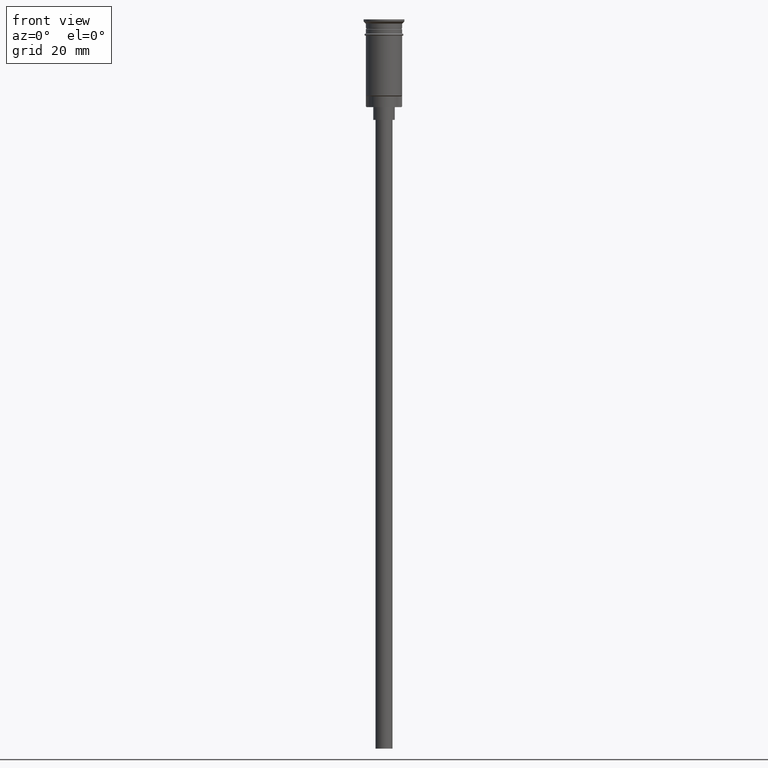
[diagram: clean part render]
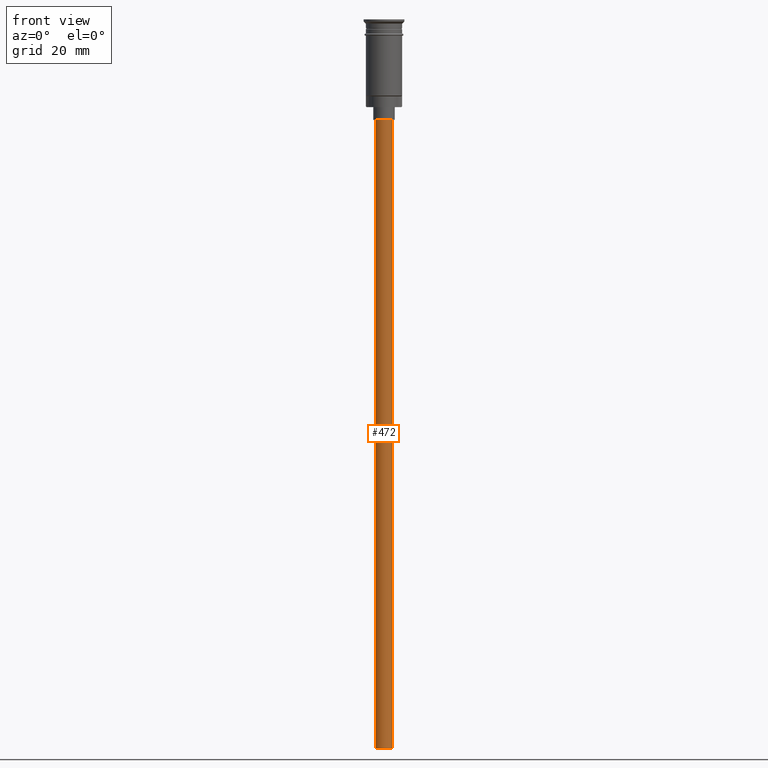
[diagram: same view with one face highlighted and labeled with its STEP entity id]
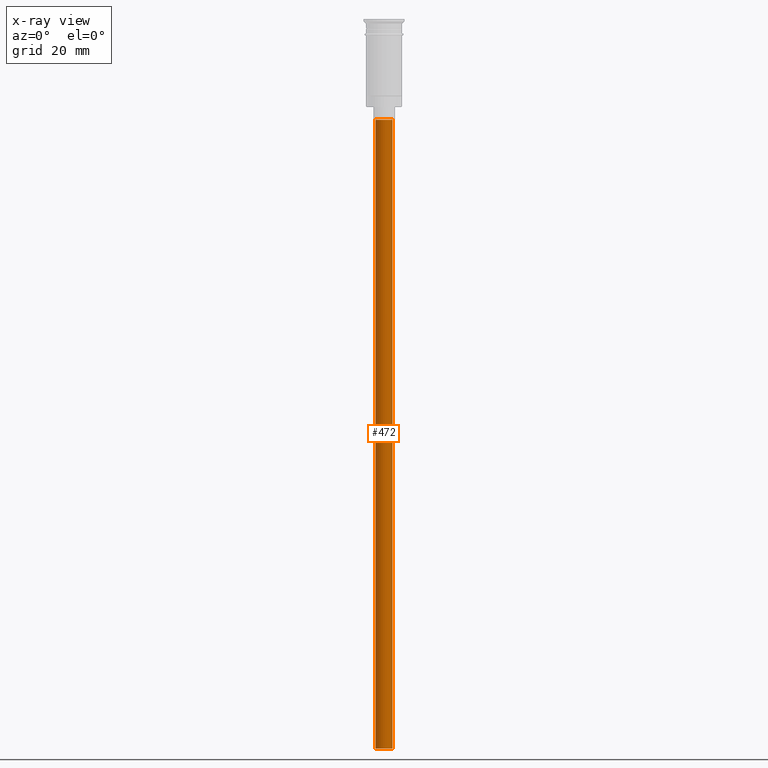
[diagram: x-ray of the same camera — body ghosted, the highlighted face saturated]
A machine part, front view. The second image highlights one B-rep face of the part: STEP entity #472.
The next image is the same camera in x-ray: the body ghosted, the highlighted face saturated — about 0% of this face is hidden behind the body in this view.
In plain terms, the highlighted cylindrical surface (edge-blend (fillet) strip) has radius 2 mm, axis along (-0, -0, 1).
Its self-contained STEP definition (entity closure, byte-faithful):
#59 = VERTEX_POINT ( 'NONE', #550 ) ;
#78 = DIRECTION ( 'NONE',  ( -0.000000000000000000, -0.000000000000000000, 1.000000000000000000 ) ) ;
#93 = ORIENTED_EDGE ( 'NONE', *, *, #1487, .T. ) ;
#177 = FACE_OUTER_BOUND ( 'NONE', #1475, .T. ) ;
#247 = VECTOR ( 'NONE', #1209, 1000.000000000000000 ) ;
#281 = DIRECTION ( 'NONE',  ( 0.000000000000000000, 0.000000000000000000, -1.000000000000000000 ) ) ;
#335 = LINE ( 'NONE', #1224, #247 ) ;
#365 = CARTESIAN_POINT ( 'NONE',  ( 0.000000000000000000, 0.000000000000000000, -23.49999999999999645 ) ) ;
#397 = CARTESIAN_POINT ( 'NONE',  ( 0.000000000000000000, 0.000000000000000000, -170.4999999999999716 ) ) ;
#430 = AXIS2_PLACEMENT_3D ( 'NONE', #365, #1365, #468 ) ;
#468 = DIRECTION ( 'NONE',  ( -1.000000000000000000, 0.000000000000000000, 0.000000000000000000 ) ) ;
#472 = ADVANCED_FACE ( 'NONE', ( #177 ), #806, .T. ) ;
#501 = CIRCLE ( 'NONE', #1226, 2.000000000000000000 ) ;
#550 = CARTESIAN_POINT ( 'NONE',  ( -2.000000000000000000, 2.449293598294706414E-16, -23.49999999999999645 ) ) ;
#687 = LINE ( 'NONE', #1560, #796 ) ;
#696 = ORIENTED_EDGE ( 'NONE', *, *, #891, .T. ) ;
#708 = CARTESIAN_POINT ( 'NONE',  ( 2.000000000000000000, 0.000000000000000000, -170.4999999999999716 ) ) ;
#778 = DIRECTION ( 'NONE',  ( -1.000000000000000000, 0.000000000000000000, 0.000000000000000000 ) ) ;
#786 = EDGE_CURVE ( 'NONE', #1277, #1184, #501, .T. ) ;
#796 = VECTOR ( 'NONE', #1046, 1000.000000000000000 ) ;
#806 = CYLINDRICAL_SURFACE ( 'NONE', #1059, 2.000000000000000000 ) ;
#847 = CIRCLE ( 'NONE', #430, 2.000000000000000000 ) ;
#891 = EDGE_CURVE ( 'NONE', #1277, #1499, #687, .T. ) ;
#940 = DIRECTION ( 'NONE',  ( 1.000000000000000000, 0.000000000000000000, 0.000000000000000000 ) ) ;
#1016 = ORIENTED_EDGE ( 'NONE', *, *, #786, .F. ) ;
#1046 = DIRECTION ( 'NONE',  ( -0.000000000000000000, -0.000000000000000000, 1.000000000000000000 ) ) ;
#1048 = EDGE_CURVE ( 'NONE', #1184, #59, #335, .T. ) ;
#1059 = AXIS2_PLACEMENT_3D ( 'NONE', #1187, #78, #940 ) ;
#1175 = CARTESIAN_POINT ( 'NONE',  ( -2.000000000000000000, 2.449293598294706414E-16, -170.4999999999999716 ) ) ;
#1184 = VERTEX_POINT ( 'NONE', #1175 ) ;
#1187 = CARTESIAN_POINT ( 'NONE',  ( 0.000000000000000000, 0.000000000000000000, -170.4999999999999716 ) ) ;
#1209 = DIRECTION ( 'NONE',  ( -0.000000000000000000, -0.000000000000000000, 1.000000000000000000 ) ) ;
#1224 = CARTESIAN_POINT ( 'NONE',  ( -2.000000000000000000, 2.449293598294706414E-16, -170.4999999999999716 ) ) ;
#1226 = AXIS2_PLACEMENT_3D ( 'NONE', #397, #281, #778 ) ;
#1277 = VERTEX_POINT ( 'NONE', #708 ) ;
#1365 = DIRECTION ( 'NONE',  ( 0.000000000000000000, 0.000000000000000000, -1.000000000000000000 ) ) ;
#1468 = CARTESIAN_POINT ( 'NONE',  ( 2.000000000000000000, 0.000000000000000000, -23.49999999999999645 ) ) ;
#1475 = EDGE_LOOP ( 'NONE', ( #1603, #1016, #696, #93 ) ) ;
#1487 = EDGE_CURVE ( 'NONE', #1499, #59, #847, .T. ) ;
#1499 = VERTEX_POINT ( 'NONE', #1468 ) ;
#1560 = CARTESIAN_POINT ( 'NONE',  ( 2.000000000000000000, 0.000000000000000000, -170.4999999999999716 ) ) ;
#1603 = ORIENTED_EDGE ( 'NONE', *, *, #1048, .F. ) ;